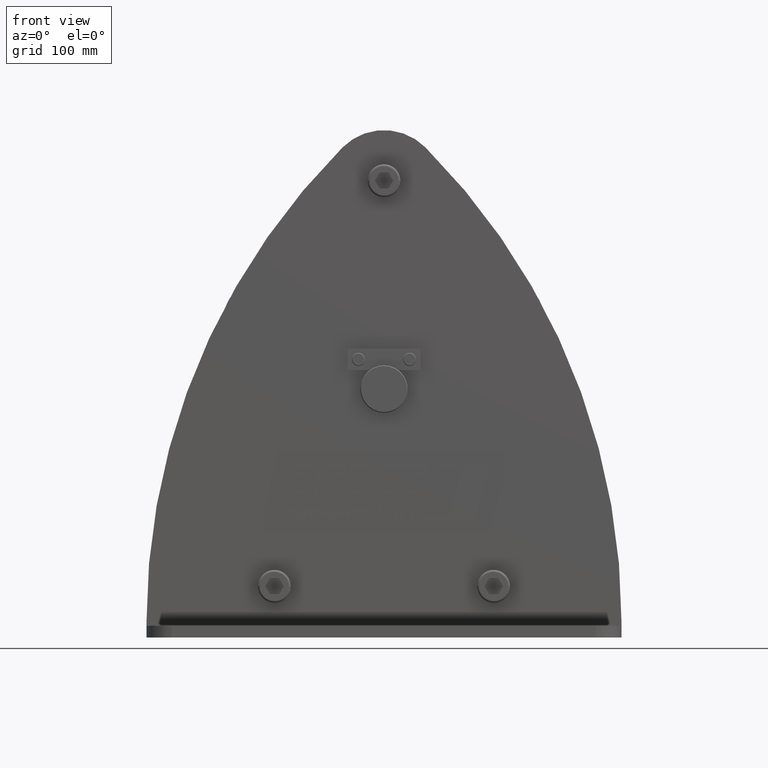
[diagram: clean part render]
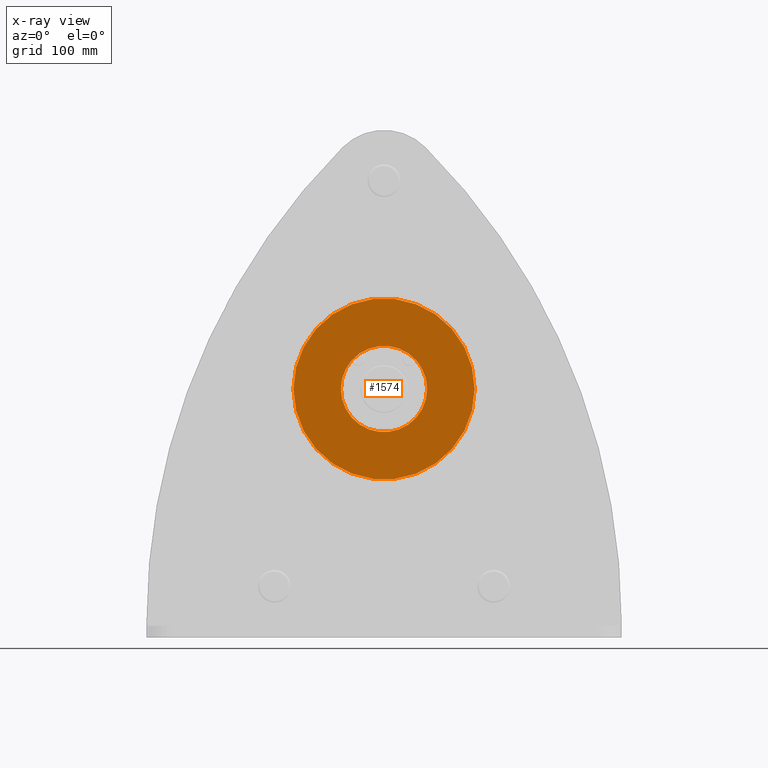
[diagram: x-ray — body ghosted, one internal face saturated and labeled with its STEP entity id]
A machine part, front view, then the same camera in x-ray: the body is ghosted and one INTERNAL B-rep face — a face not visible from any outside direction — is saturated and labeled: STEP entity #1574.
In plain terms, the highlighted planar face has unit normal (0, -1, 0).
Its self-contained STEP definition (entity closure, byte-faithful):
#1574=ADVANCED_FACE('',(#3388,#3389),#3390,.T.);
#3388=FACE_BOUND('',#5420,.T.);
#3389=FACE_OUTER_BOUND('',#5421,.T.);
#3390=PLANE('',#5422);
#5420=EDGE_LOOP('',(#10369,#10370));
#5421=EDGE_LOOP('',(#10371,#10372));
#5422=AXIS2_PLACEMENT_3D('',#10373,#10374,#10375);
#10369=ORIENTED_EDGE('',*,*,#13947,.T.);
#10370=ORIENTED_EDGE('',*,*,#12398,.T.);
#10371=ORIENTED_EDGE('',*,*,#12502,.T.);
#10372=ORIENTED_EDGE('',*,*,#13948,.T.);
#10373=CARTESIAN_POINT('',(62.0,-35.0,0.0));
#10374=DIRECTION('',(0.0,-1.0,0.0));
#10375=DIRECTION('',(1.0,0.0,0.0));
#12398=EDGE_CURVE('',#15021,#15018,#15022,.T.);
#12502=EDGE_CURVE('',#15184,#15186,#15188,.T.);
#13947=EDGE_CURVE('',#15018,#15021,#17325,.T.);
#13948=EDGE_CURVE('',#15186,#15184,#17326,.T.);
#15018=VERTEX_POINT('',#21199);
#15021=VERTEX_POINT('',#21203);
#15022=CIRCLE('',#21204,59.0);
#15184=VERTEX_POINT('',#22028);
#15186=VERTEX_POINT('',#22031);
#15188=CIRCLE('',#22034,124.0);
#17325=CIRCLE('',#24915,59.0);
#17326=CIRCLE('',#24916,124.0);
#21199=CARTESIAN_POINT('',(59.0,-35.0,0.0));
#21203=CARTESIAN_POINT('',(-59.0,-35.0,7.22541611496938E-015));
#21204=AXIS2_PLACEMENT_3D('',#27262,#27263,#27264);
#22028=CARTESIAN_POINT('',(124.0,-35.0,0.0));
#22031=CARTESIAN_POINT('',(-124.0,-35.0,1.51856203094272E-014));
#22034=AXIS2_PLACEMENT_3D('',#27410,#27411,#27412);
#24915=AXIS2_PLACEMENT_3D('',#29093,#29094,#29095);
#24916=AXIS2_PLACEMENT_3D('',#29096,#29097,#29098);
#27262=CARTESIAN_POINT('',(0.0,-35.0,0.0));
#27263=DIRECTION('',(-0.0,1.0,0.0));
#27264=DIRECTION('',(1.0,0.0,0.0));
#27410=CARTESIAN_POINT('',(0.0,-35.0,0.0));
#27411=DIRECTION('',(0.0,-1.0,0.0));
#27412=DIRECTION('',(1.0,0.0,0.0));
#29093=CARTESIAN_POINT('',(0.0,-35.0,0.0));
#29094=DIRECTION('',(-0.0,1.0,0.0));
#29095=DIRECTION('',(1.0,0.0,0.0));
#29096=CARTESIAN_POINT('',(0.0,-35.0,0.0));
#29097=DIRECTION('',(0.0,-1.0,0.0));
#29098=DIRECTION('',(1.0,0.0,0.0));